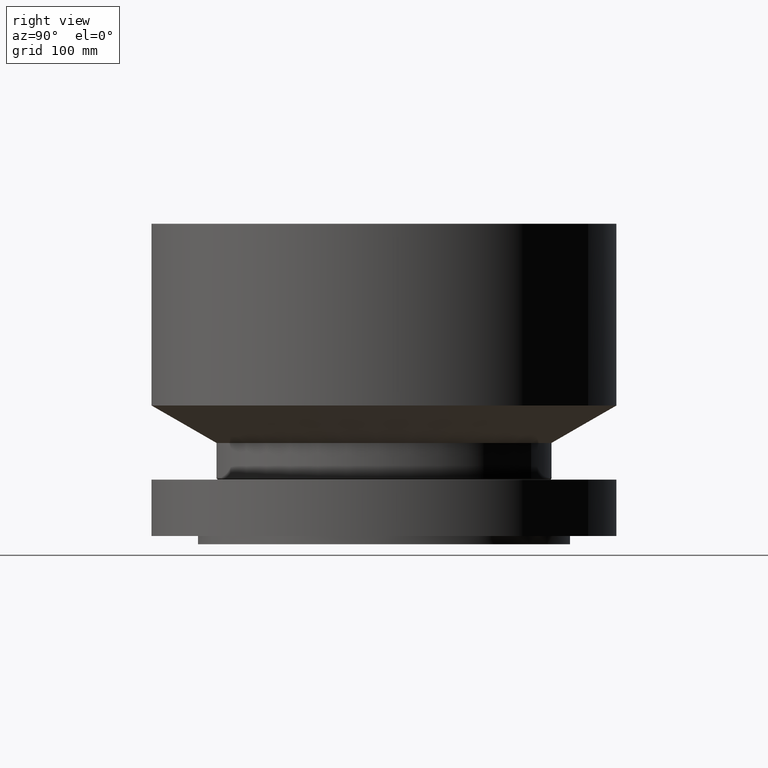
[diagram: clean part render]
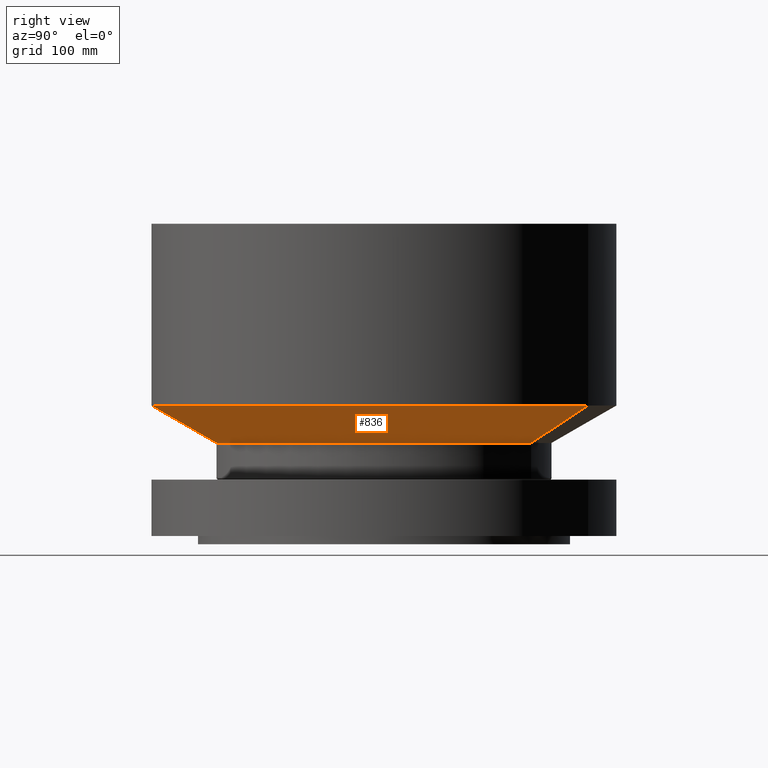
[diagram: same view with one face highlighted and labeled with its STEP entity id]
A machine part, right view. The second image highlights one B-rep face of the part: STEP entity #836.
In plain terms, the highlighted conical surface has half-angle 60 deg.
Its self-contained STEP definition (entity closure, byte-faithful):
#777=AXIS2_PLACEMENT_3D('Circle Axis2P3D',#775,#776,$) ;
#809=AXIS2_PLACEMENT_3D('Cone Axis2P3D',#806,#807,#808) ;
#820=AXIS2_PLACEMENT_3D('Circle Axis2P3D',#818,#819,$) ;
#772=CARTESIAN_POINT('Vertex',(3.0251751486,5.53754596555,3.50000000001)) ;
#775=CARTESIAN_POINT('Axis2P3D Location',(0.,0.,3.50000000001)) ;
#779=CARTESIAN_POINT('Vertex',(-3.0251751486,-5.53754596555,3.50000000001)) ;
#806=CARTESIAN_POINT('Axis2P3D Location',(0.,0.,3.50000000001)) ;
#811=CARTESIAN_POINT('Line Origine',(3.6100743057,6.60819669106,4.20436732843)) ;
#815=CARTESIAN_POINT('Vertex',(4.1949734628,7.67884741657,4.90873465684)) ;
#818=CARTESIAN_POINT('Axis2P3D Location',(0.,0.,4.90873465684)) ;
#822=CARTESIAN_POINT('Vertex',(-4.1949734628,-7.67884741657,4.90873465684)) ;
#825=CARTESIAN_POINT('Line Origine',(-3.6100743057,-6.60819669106,4.20436732843)) ;
#776=DIRECTION('Axis2P3D Direction',(0.,0.,-0.0393700787402)) ;
#807=DIRECTION('Axis2P3D Direction',(-0.,-0.,0.0393700787402)) ;
#808=DIRECTION('Axis2P3D XDirection',(0.0188750212049,0.0345504945626,0.)) ;
#812=DIRECTION('Vector Direction',(0.0163462478604,0.0299216060045,0.0196850393701)) ;
#819=DIRECTION('Axis2P3D Direction',(-0.,0.,0.0393700787402)) ;
#826=DIRECTION('Vector Direction',(-0.0163462478604,-0.0299216060045,0.0196850393701)) ;
#813=VECTOR('Line Direction',#812,0.0393700787402) ;
#827=VECTOR('Line Direction',#826,0.0393700787402) ;
#831=ORIENTED_EDGE('',*,*,#781,.F.) ;
#832=ORIENTED_EDGE('',*,*,#817,.T.) ;
#833=ORIENTED_EDGE('',*,*,#824,.T.) ;
#834=ORIENTED_EDGE('',*,*,#829,.F.) ;
#836=ADVANCED_FACE('PartBody',(#835),#810,.T.) ;
#778=CIRCLE('generated circle',#777,6.31000000003) ;
#821=CIRCLE('generated circle',#820,8.75000000003) ;
#810=CONICAL_SURFACE('Cone',#809,6.31000000003,1.0471975512) ;
#781=EDGE_CURVE('',#773,#780,#778,.T.) ;
#817=EDGE_CURVE('',#773,#816,#814,.T.) ;
#824=EDGE_CURVE('',#816,#823,#821,.F.) ;
#829=EDGE_CURVE('',#780,#823,#828,.T.) ;
#830=EDGE_LOOP('',(#831,#832,#833,#834)) ;
#835=FACE_OUTER_BOUND('',#830,.T.) ;
#814=LINE('Line',#811,#813) ;
#828=LINE('Line',#825,#827) ;
#773=VERTEX_POINT('',#772) ;
#780=VERTEX_POINT('',#779) ;
#816=VERTEX_POINT('',#815) ;
#823=VERTEX_POINT('',#822) ;